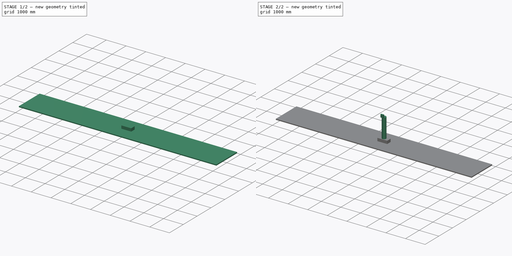
[diagram: build sequence overview — one tinted view per stage of 2, left to right]
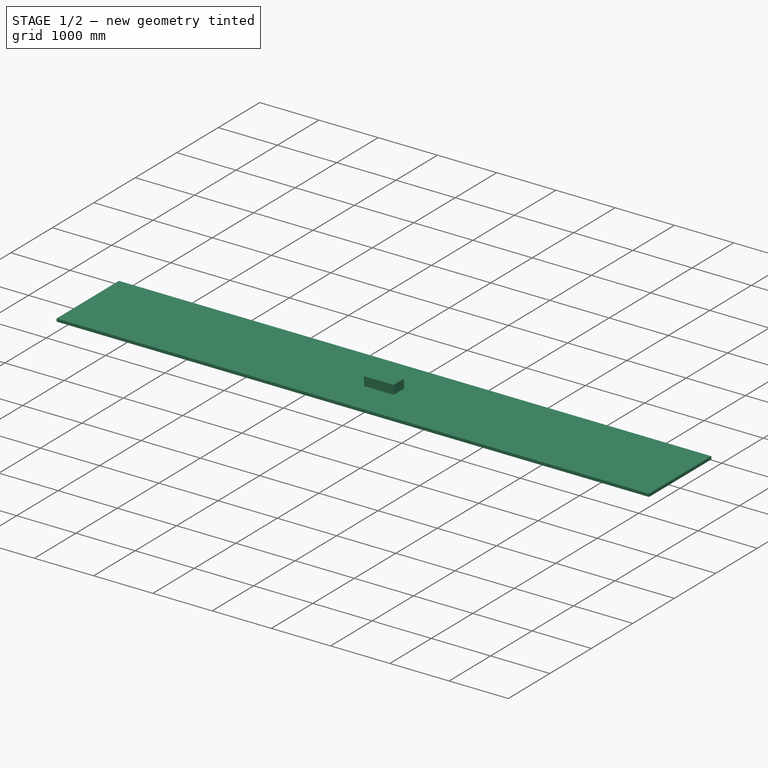
[diagram: stage 1 of 2 — iso view after this stage's code; geometry added in this stage tinted green]
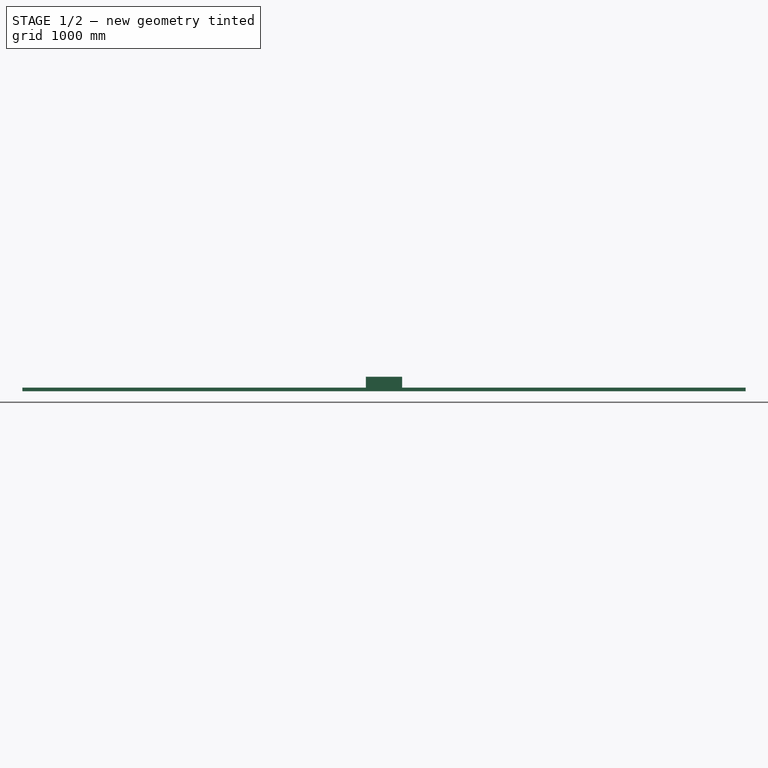
[diagram: stage 1 of 2 — front view after this stage's code; geometry added in this stage tinted green]
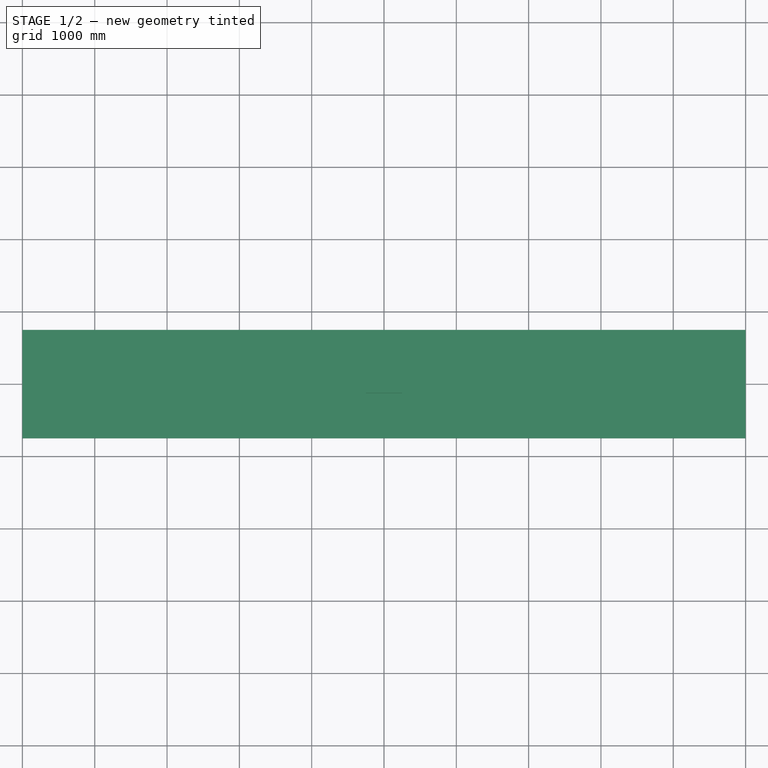
[diagram: stage 1 of 2 — top view after this stage's code; geometry added in this stage tinted green]
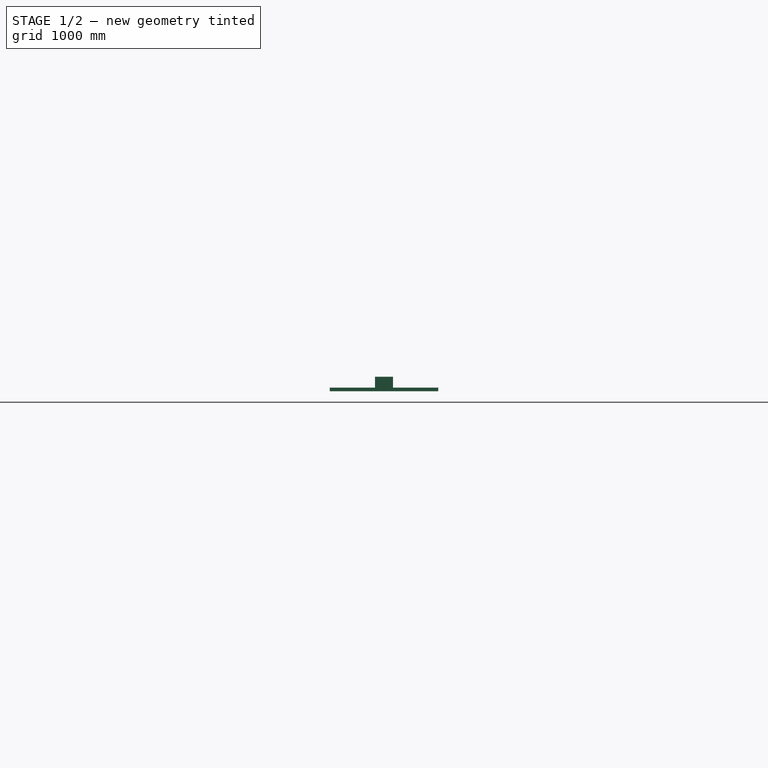
[diagram: stage 1 of 2 — right view after this stage's code; geometry added in this stage tinted green]
FCSTD DOCUMENT  (FreeCAD 0.18.4R)
Label: cad
License: All rights reserved
LicenseURL: http://en.wikipedia.org/wiki/All_rights_reserved
objects: Sketcher::SketchObject×4, PartDesign::Pad×4, PartDesign::Body×1
note: 13 computed .brp shape members not serialized (recipe doc carries the construction recipe); baked Part::Feature solids carry a one-line shape summary decoded from their .brp

FEATURE [Sketcher::SketchObject] Sketch
  MapMode = 5
  Support = -> [XY_Plane]
  sketch-geometry (4):
    g0: LineSegment StartX=-5000 StartY=750 StartZ=0 EndX=5000 EndY=750 EndZ=0
    g1: LineSegment StartX=5000 StartY=750 StartZ=0 EndX=5000 EndY=-750 EndZ=0
    g2: LineSegment StartX=5000 StartY=-750 StartZ=0 EndX=-5000 EndY=-750 EndZ=0
    g3: LineSegment StartX=-5000 StartY=-750 StartZ=0 EndX=-5000 EndY=750 EndZ=0
  constraints (12):
    c: Coincident(g0,g1)
    c: Coincident(g1,g2)
    c: Coincident(g2,g3)
    c: Coincident(g3,g0)
    c: Horizontal(g0)
    c: Horizontal(g2)
    c: Vertical(g1)
    c: Vertical(g3)
    c: DistanceX(g2,g2) = 10000
    c: DistanceY(g3,g3) = 1500
    c: DistanceY(g2,g-1) = 750
    c: DistanceX(g0,g-1) = 5000
FEATURE [PartDesign::Pad] Pad
  Length = 50
  Length2 = 100
  Profile = -> Sketch
  Type = 0
FEATURE [Sketcher::SketchObject] Sketch001
  MapMode = 5
  Placement = pos=(0,0,50) rot=(0,0,1;0rad)
  Support = -> [Pad]
  sketch-geometry (4):
    g0: LineSegment StartX=-250 StartY=125 StartZ=0 EndX=250 EndY=125 EndZ=0
    g1: LineSegment StartX=250 StartY=125 StartZ=0 EndX=250 EndY=-125 EndZ=0
    g2: LineSegment StartX=250 StartY=-125 StartZ=0 EndX=-250 EndY=-125 EndZ=0
    g3: LineSegment StartX=-250 StartY=-125 StartZ=0 EndX=-250 EndY=125 EndZ=0
  constraints (12):
    c: Coincident(g0,g1)
    c: Coincident(g1,g2)
    c: Coincident(g2,g3)
    c: Coincident(g3,g0)
    c: Horizontal(g0)
    c: Horizontal(g2)
    c: Vertical(g1)
    c: Vertical(g3)
    c: DistanceX(g2,g2) = 500
    c: DistanceY(g3,g3) = 250
    c: DistanceY(g2,g-1) = 125
    c: DistanceX(g0,g-1) = 250
FEATURE [PartDesign::Pad] Pad001
  BaseFeature = -> Pad
  Length = 150
  Length2 = 100
  Profile = -> Sketch001
  Type = 0
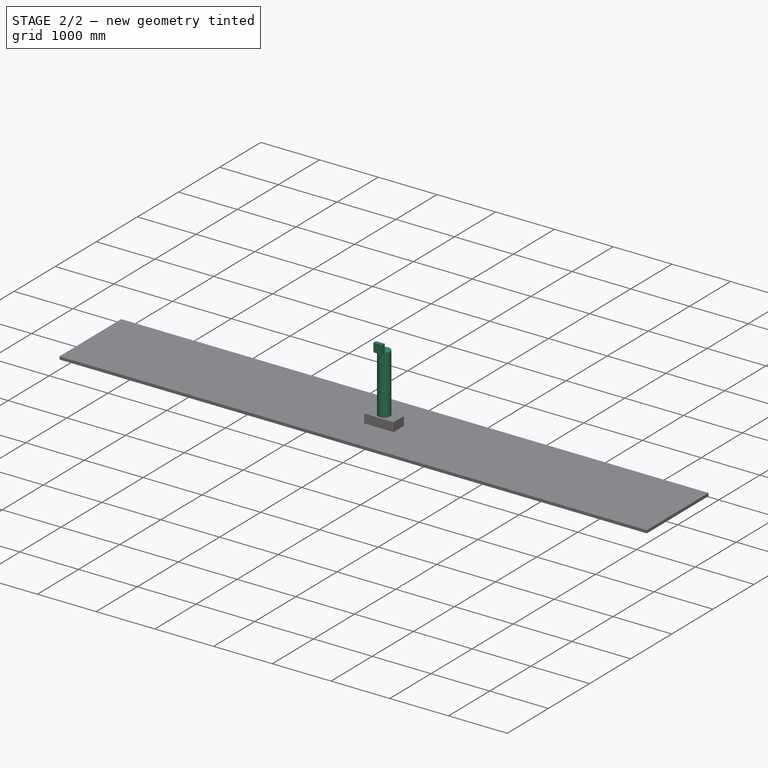
[diagram: stage 2 of 2 — iso view after this stage's code; geometry added in this stage tinted green]
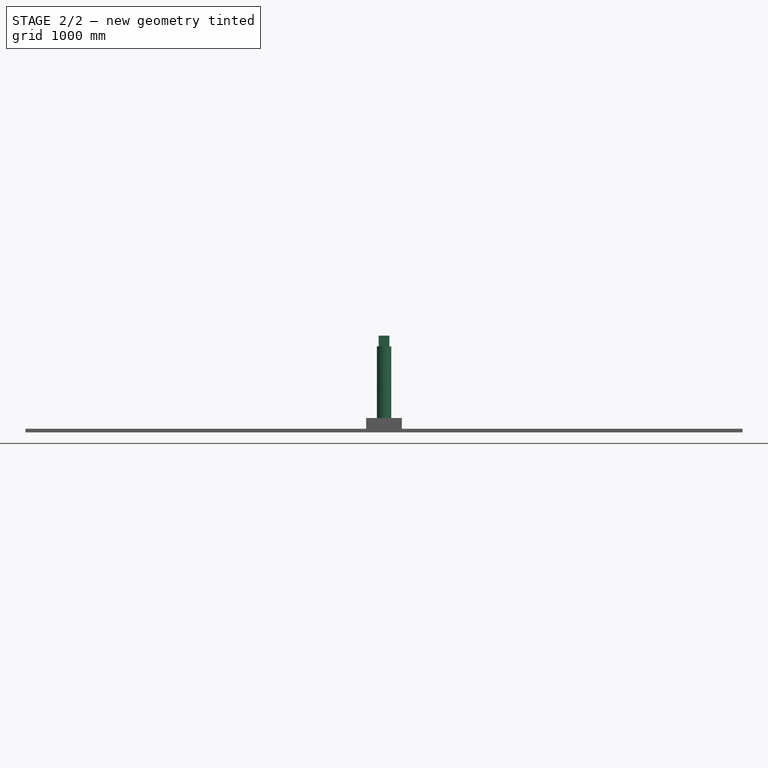
[diagram: stage 2 of 2 — front view after this stage's code; geometry added in this stage tinted green]
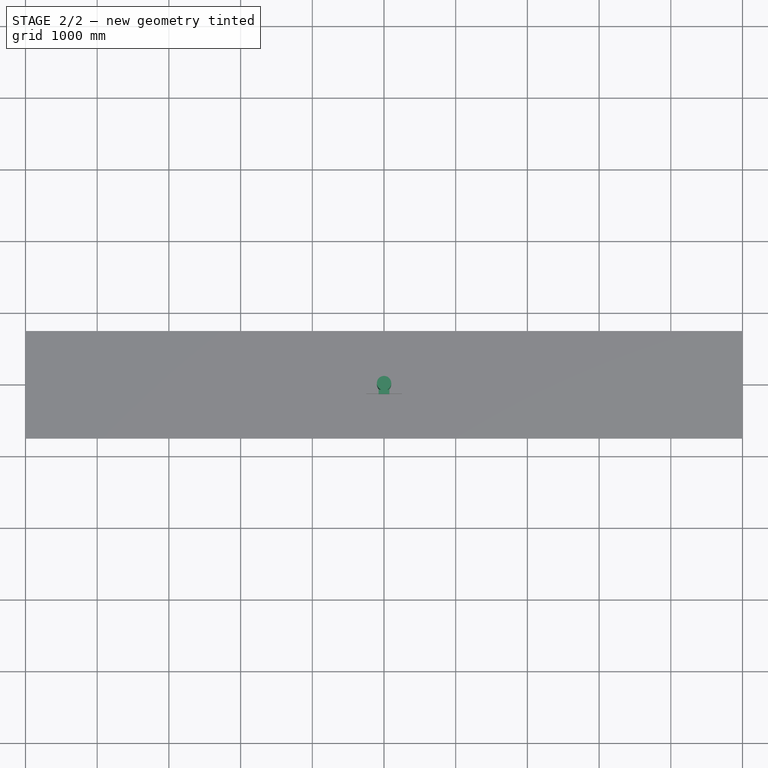
[diagram: stage 2 of 2 — top view after this stage's code; geometry added in this stage tinted green]
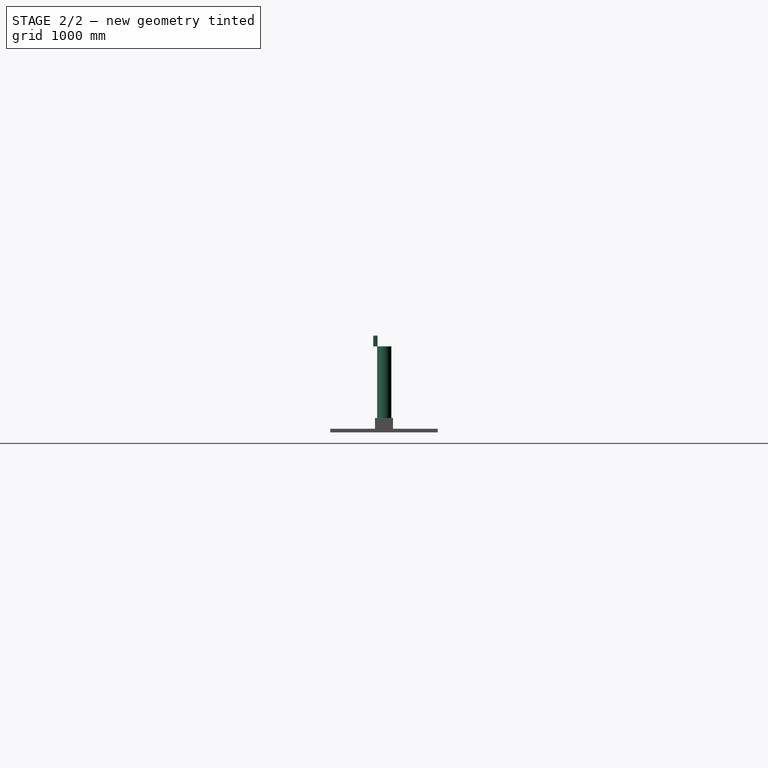
[diagram: stage 2 of 2 — right view after this stage's code; geometry added in this stage tinted green]
FEATURE [Sketcher::SketchObject] Sketch002
  MapMode = 5
  Placement = pos=(0,0,200) rot=(0,0,1;0rad)
  Support = -> [Pad001]
  sketch-geometry (1):
    g0: Circle CenterX=0.478492 CenterY=3.61173 CenterZ=0 NormalX=0 NormalY=0 NormalZ=1 AngleXU=0 Radius=100
  constraints (1):
    c: Radius(g0) = 100
FEATURE [PartDesign::Pad] Pad002
  BaseFeature = -> Pad001
  Length = 1000
  Length2 = 100
  Profile = -> Sketch002
  Type = 0
FEATURE [Sketcher::SketchObject] Sketch003
  MapMode = 5
  Placement = pos=(0,0,1200) rot=(0,0,1;0rad)
  Support = -> [Pad002]
  sketch-geometry (4):
    g0: LineSegment StartX=-75 StartY=-150 StartZ=0 EndX=75 EndY=-150 EndZ=0
    g1: LineSegment StartX=75 StartY=-150 StartZ=0 EndX=75 EndY=-90 EndZ=0
    g2: LineSegment StartX=75 StartY=-90 StartZ=0 EndX=-75 EndY=-90 EndZ=0
    g3: LineSegment StartX=-75 StartY=-90 StartZ=0 EndX=-75 EndY=-150 EndZ=0
  constraints (12):
    c: Coincident(g0,g1)
    c: Coincident(g1,g2)
    c: Coincident(g2,g3)
    c: Coincident(g3,g0)
    c: Horizontal(g0)
    c: Horizontal(g2)
    c: Vertical(g1)
    c: Vertical(g3)
    c: DistanceY(g3,g3) = 60
    c: DistanceX(g0,g0) = 150
    c: DistanceY(g2,g-1) = 90
    c: DistanceX(g2,g-1) = 75
FEATURE [PartDesign::Pad] Pad003
  BaseFeature = -> Pad002
  Length = 150
  Length2 = 100
  Profile = -> Sketch003
  Type = 0
FEATURE [PartDesign::Body] Body
  Group = -> [Sketch,Pad,Sketch001,Pad001,Sketch002,Pad002,Sketch003,Pad003]
  Origin = -> Origin
  Tip = -> Pad003
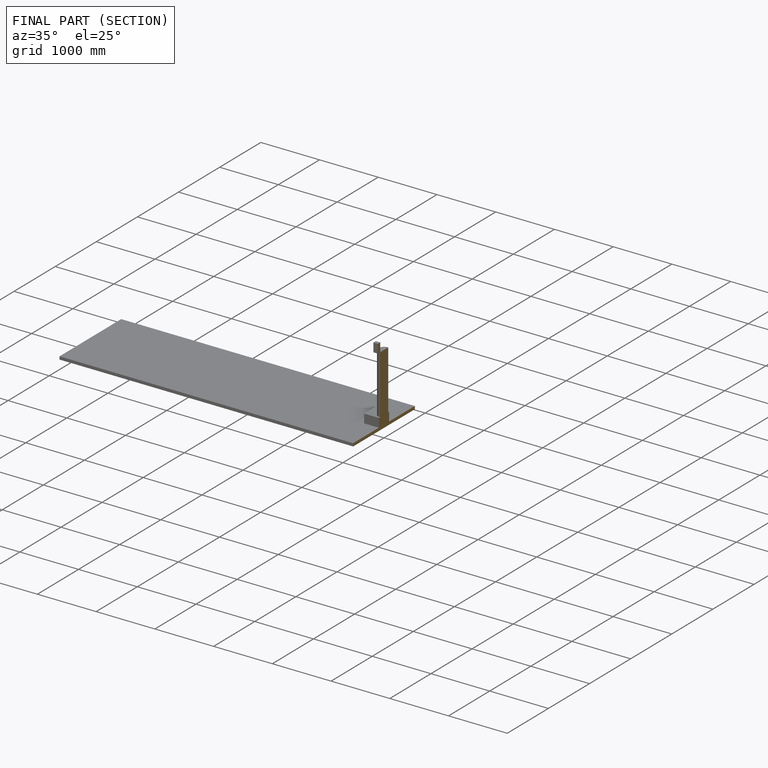
[diagram: finished part — half-section view (interior)]
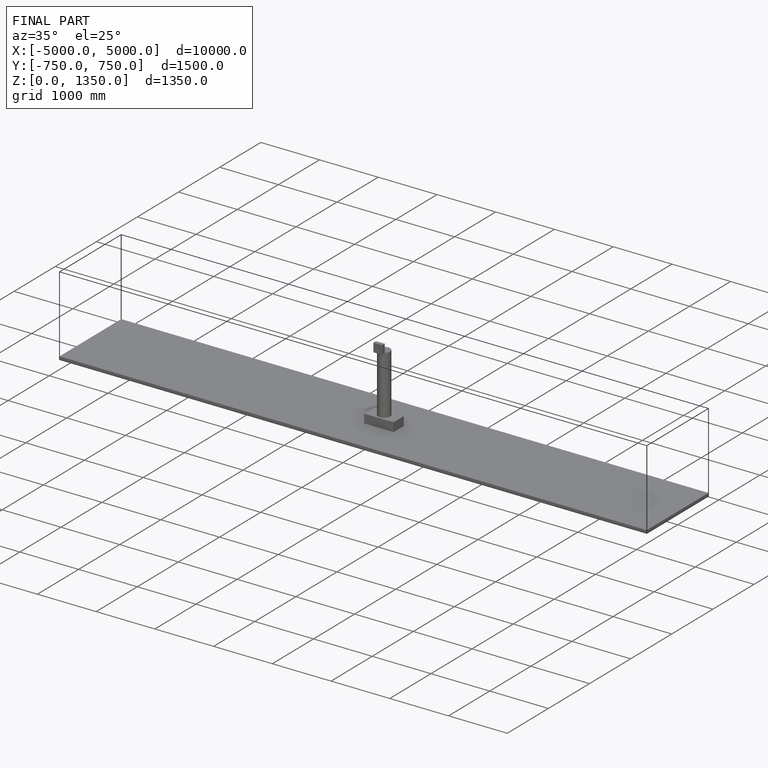
[diagram: finished part — iso view with bounding-box wireframe]
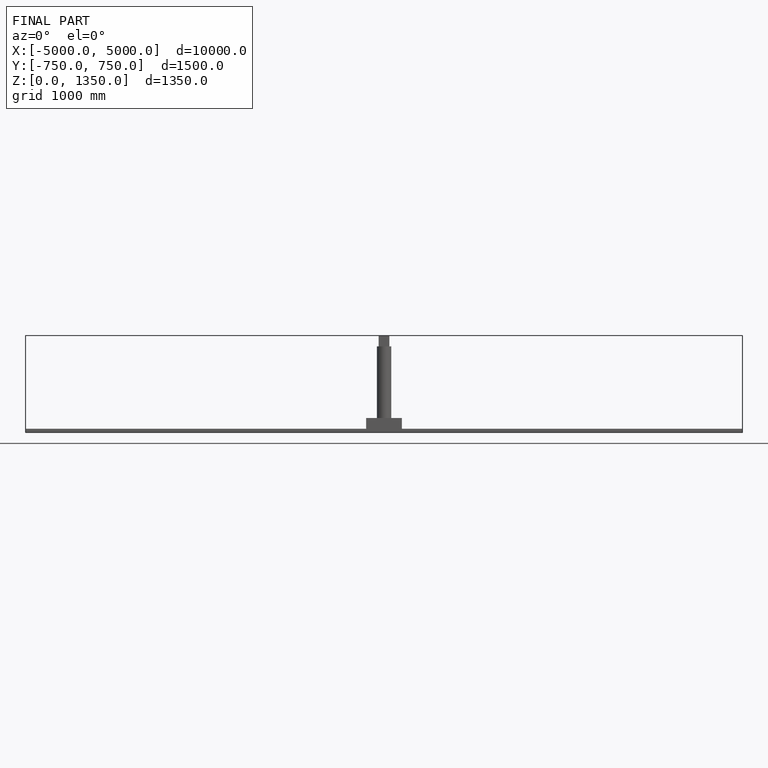
[diagram: finished part — front view with bounding-box wireframe]
